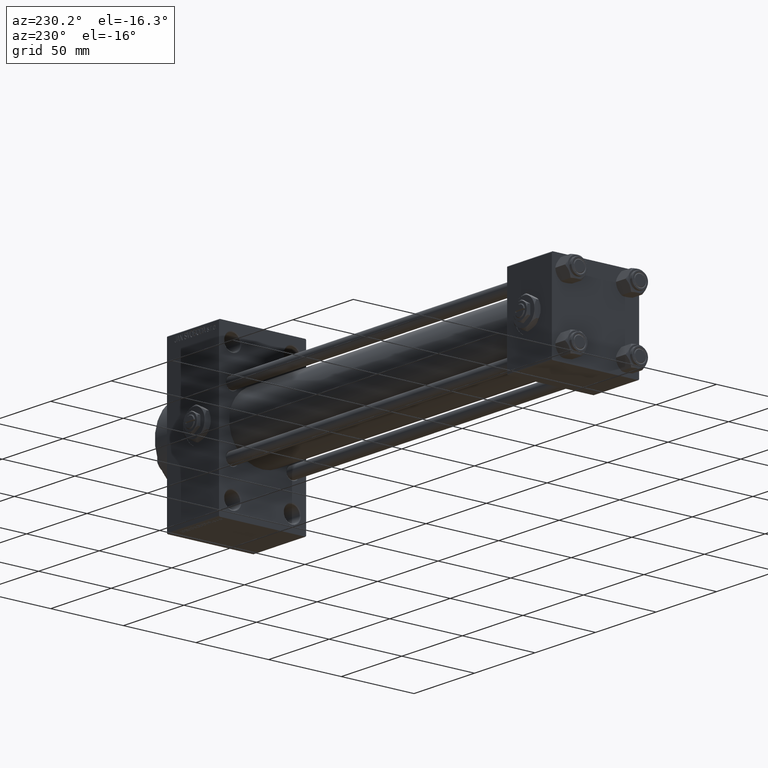
[diagram: clean part render]
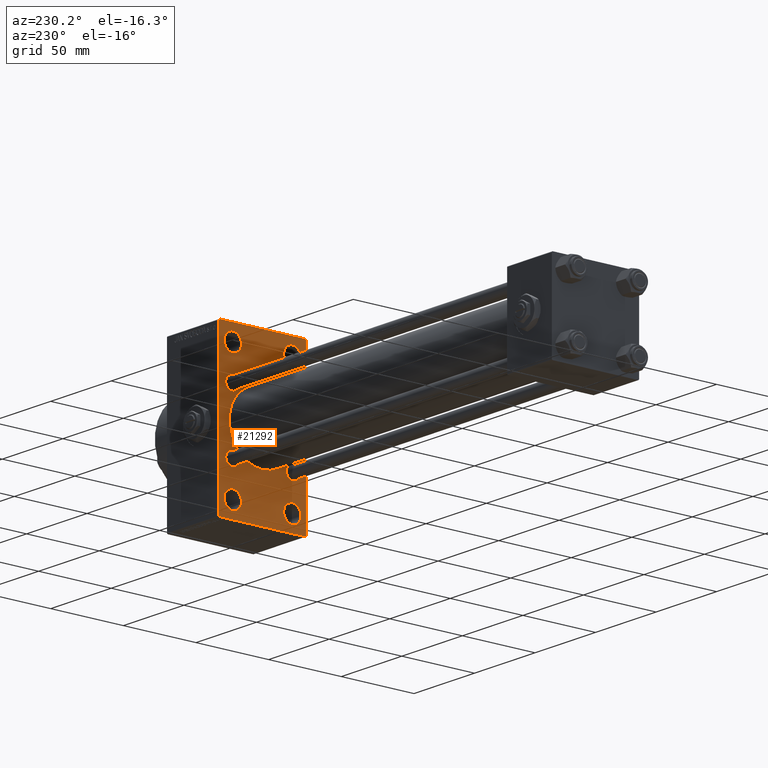
[diagram: same view with one face highlighted and labeled with its STEP entity id]
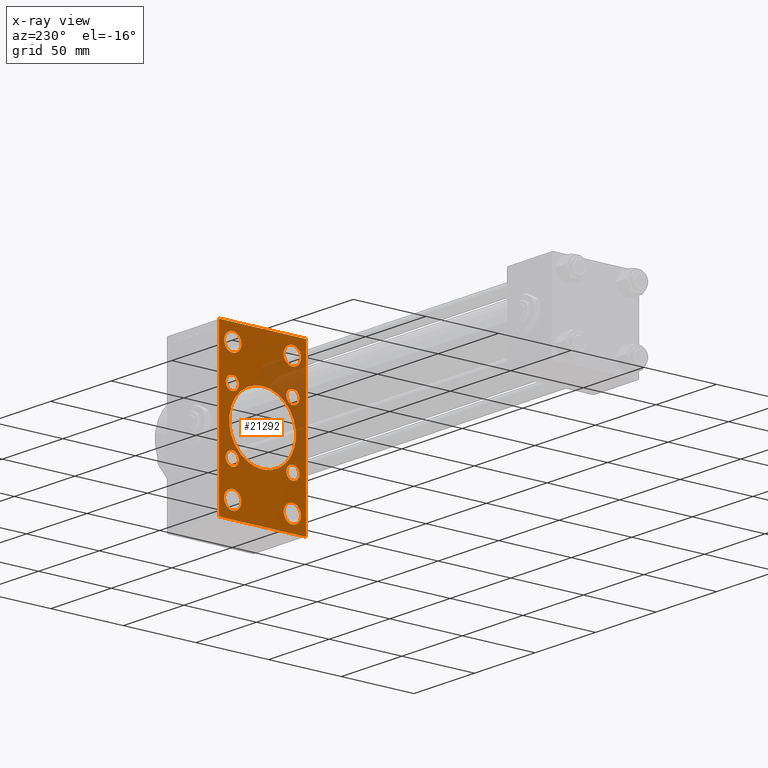
[diagram: x-ray of the same camera — body ghosted, the highlighted face saturated]
A machine part, auxiliary view. The second image highlights one B-rep face of the part: STEP entity #21292.
The next image is the same camera in x-ray: the body ghosted, the highlighted face saturated — about 18% of this face is hidden behind the body in this view.
In plain terms, the highlighted planar face has unit normal (-1, 0, 0).
Its self-contained STEP definition (entity closure, byte-faithful):
#101 = CARTESIAN_POINT ( 'NONE',  ( 274.9999999999999432, 42.00000000000081002, -41.99999999999847233 ) ) ;
#263 = EDGE_CURVE ( 'NONE', #37332, #35288, #37143, .T. ) ;
#914 = ORIENTED_EDGE ( 'NONE', *, *, #8785, .T. ) ;
#978 = CARTESIAN_POINT ( 'NONE',  ( 274.9999999999999432, 0.000000000000000000, 0.000000000000000000 ) ) ;
#1447 = CARTESIAN_POINT ( 'NONE',  ( 274.9999999999999432, 20.84999999999999787, 20.85000000000000142 ) ) ;
#1534 = VERTEX_POINT ( 'NONE', #9001 ) ;
#2008 = VERTEX_POINT ( 'NONE', #21192 ) ;
#2254 = VECTOR ( 'NONE', #18330, 1000.000000000000000 ) ;
#2692 = EDGE_CURVE ( 'NONE', #33189, #16506, #24464, .T. ) ;
#2835 = AXIS2_PLACEMENT_3D ( 'NONE', #26892, #30891, #41911 ) ;
#2849 = DIRECTION ( 'NONE',  ( 1.000000000000000000, -0.000000000000000000, 0.000000000000000000 ) ) ;
#2924 = CARTESIAN_POINT ( 'NONE',  ( 274.9999999999999432, 20.84999999999999787, 20.85000000000000142 ) ) ;
#3090 = CARTESIAN_POINT ( 'NONE',  ( 274.9999999999999432, 20.84999999999999787, -20.85000000000000142 ) ) ;
#3765 = CIRCLE ( 'NONE', #32573, 4.500000000000007105 ) ;
#3788 = EDGE_CURVE ( 'NONE', #12443, #31094, #41171, .T. ) ;
#3977 = VECTOR ( 'NONE', #19443, 1000.000000000000000 ) ;
#3987 = FACE_BOUND ( 'NONE', #16099, .T. ) ;
#4024 = DIRECTION ( 'NONE',  ( 1.000000000000000000, -0.000000000000000000, 0.000000000000000000 ) ) ;
#4090 = CARTESIAN_POINT ( 'NONE',  ( 274.9999999999999432, 29.99999999999999645, -54.49999999999999289 ) ) ;
#4164 = LINE ( 'NONE', #19951, #3977 ) ;
#4467 = FACE_BOUND ( 'NONE', #15146, .T. ) ;
#4901 = EDGE_CURVE ( 'NONE', #46696, #48125, #39597, .T. ) ;
#5050 = CARTESIAN_POINT ( 'NONE',  ( 274.9999999999999432, -20.50000000000000000, 43.50000000000000000 ) ) ;
#5792 = VERTEX_POINT ( 'NONE', #24371 ) ;
#6061 = CARTESIAN_POINT ( 'NONE',  ( 274.9999999999999432, -29.50000000000002842, -54.50000000000000000 ) ) ;
#6183 = EDGE_CURVE ( 'NONE', #6535, #39296, #27646, .T. ) ;
#6430 = DIRECTION ( 'NONE',  ( 1.000000000000000000, -0.000000000000000000, 0.000000000000000000 ) ) ;
#6535 = VERTEX_POINT ( 'NONE', #46885 ) ;
#6922 = DIRECTION ( 'NONE',  ( 1.000000000000000000, -0.000000000000000000, 0.000000000000000000 ) ) ;
#7141 = AXIS2_PLACEMENT_3D ( 'NONE', #12508, #43043, #35532 ) ;
#7200 = VECTOR ( 'NONE', #21836, 1000.000000000000000 ) ;
#8085 = CARTESIAN_POINT ( 'NONE',  ( 274.9999999999999432, -20.84999999999999076, 25.35000000000001208 ) ) ;
#8230 = PLANE ( 'NONE',  #20949 ) ;
#8481 = DIRECTION ( 'NONE',  ( -1.000000000000000000, 0.000000000000000000, -0.000000000000000000 ) ) ;
#8785 = EDGE_CURVE ( 'NONE', #41372, #16413, #44723, .T. ) ;
#8812 = EDGE_CURVE ( 'NONE', #48478, #13661, #41324, .T. ) ;
#8911 = CARTESIAN_POINT ( 'NONE',  ( 274.9999999999999432, -29.49999999999994671, 54.50000000000000000 ) ) ;
#8934 = CARTESIAN_POINT ( 'NONE',  ( 274.9999999999999432, -20.50000000000000000, -49.50000000000005684 ) ) ;
#9001 = CARTESIAN_POINT ( 'NONE',  ( 274.9999999999999432, 29.49999999999999645, -54.49999999999999289 ) ) ;
#9140 = EDGE_CURVE ( 'NONE', #39296, #6535, #3765, .T. ) ;
#9932 = ORIENTED_EDGE ( 'NONE', *, *, #18369, .F. ) ;
#10114 = CARTESIAN_POINT ( 'NONE',  ( 274.9999999999999432, -30.00000000000000000, 53.99999999999994316 ) ) ;
#10389 = CIRCLE ( 'NONE', #47181, 4.500000000000007105 ) ;
#10447 = CARTESIAN_POINT ( 'NONE',  ( 274.9999999999999432, -20.50000000000000000, 49.50000000000005684 ) ) ;
#10676 = CARTESIAN_POINT ( 'NONE',  ( 274.9999999999999432, 20.84999999999999787, -25.35000000000000853 ) ) ;
#10974 = EDGE_CURVE ( 'NONE', #2008, #1534, #41669, .T. ) ;
#11172 = ORIENTED_EDGE ( 'NONE', *, *, #4901, .T. ) ;
#11293 = CARTESIAN_POINT ( 'NONE',  ( 274.9999999999999432, 20.50000000000000000, -37.49999999999993605 ) ) ;
#11440 = ORIENTED_EDGE ( 'NONE', *, *, #2692, .T. ) ;
#11537 = CARTESIAN_POINT ( 'NONE',  ( 274.9999999999999432, 20.50000000000000000, 43.50000000000000000 ) ) ;
#11570 = CARTESIAN_POINT ( 'NONE',  ( 274.9999999999999432, -20.84999999999999076, -16.34999999999999787 ) ) ;
#11618 = AXIS2_PLACEMENT_3D ( 'NONE', #16091, #35366, #27107 ) ;
#11993 = DIRECTION ( 'NONE',  ( 1.000000000000000000, -0.000000000000000000, 0.000000000000000000 ) ) ;
#11996 = VERTEX_POINT ( 'NONE', #32924 ) ;
#12040 = CIRCLE ( 'NONE', #20046, 6.000000000000060396 ) ;
#12250 = FACE_BOUND ( 'NONE', #30135, .T. ) ;
#12324 = CARTESIAN_POINT ( 'NONE',  ( 274.9999999999999432, 20.50000000000000000, 49.50000000000005684 ) ) ;
#12443 = VERTEX_POINT ( 'NONE', #11570 ) ;
#12508 = CARTESIAN_POINT ( 'NONE',  ( 274.9999999999999432, 20.50000000000000000, -43.50000000000000000 ) ) ;
#12756 = VERTEX_POINT ( 'NONE', #48827 ) ;
#13266 = EDGE_CURVE ( 'NONE', #45092, #28621, #35237, .T. ) ;
#13661 = VERTEX_POINT ( 'NONE', #11293 ) ;
#13932 = DIRECTION ( 'NONE',  ( -0.000000000000000000, 0.7071067811865451302, 0.7071067811865500152 ) ) ;
#14053 = VERTEX_POINT ( 'NONE', #8934 ) ;
#14583 = DIRECTION ( 'NONE',  ( 0.000000000000000000, 0.000000000000000000, 1.000000000000000000 ) ) ;
#14736 = DIRECTION ( 'NONE',  ( 0.000000000000000000, 0.000000000000000000, 1.000000000000000000 ) ) ;
#14882 = CARTESIAN_POINT ( 'NONE',  ( 274.9999999999999432, 20.50000000000000000, 37.49999999999993605 ) ) ;
#15146 = EDGE_LOOP ( 'NONE', ( #25059, #33566 ) ) ;
#15324 = EDGE_CURVE ( 'NONE', #12756, #44801, #10389, .T. ) ;
#15386 = ORIENTED_EDGE ( 'NONE', *, *, #10974, .T. ) ;
#15574 = CARTESIAN_POINT ( 'NONE',  ( 274.9999999999999432, -20.84999999999999076, -20.85000000000000497 ) ) ;
#15661 = AXIS2_PLACEMENT_3D ( 'NONE', #38024, #22271, #30517 ) ;
#16085 = DIRECTION ( 'NONE',  ( 0.000000000000000000, 0.000000000000000000, 1.000000000000000000 ) ) ;
#16091 = CARTESIAN_POINT ( 'NONE',  ( 274.9999999999999432, -2.602085213965210642E-15, 0.000000000000000000 ) ) ;
#16099 = EDGE_LOOP ( 'NONE', ( #41781, #20196 ) ) ;
#16297 = AXIS2_PLACEMENT_3D ( 'NONE', #26999, #45289, #27499 ) ;
#16395 = AXIS2_PLACEMENT_3D ( 'NONE', #5050, #17562, #32836 ) ;
#16413 = VERTEX_POINT ( 'NONE', #8911 ) ;
#16506 = VERTEX_POINT ( 'NONE', #14882 ) ;
#16884 = EDGE_CURVE ( 'NONE', #14053, #11996, #12040, .T. ) ;
#16946 = CARTESIAN_POINT ( 'NONE',  ( 274.9999999999999432, -42.00000000000007105, 41.99999999999977973 ) ) ;
#17562 = DIRECTION ( 'NONE',  ( 1.000000000000000000, -0.000000000000000000, 0.000000000000000000 ) ) ;
#17688 = DIRECTION ( 'NONE',  ( 1.000000000000000000, -0.000000000000000000, 0.000000000000000000 ) ) ;
#18330 = DIRECTION ( 'NONE',  ( 0.000000000000000000, 0.000000000000000000, -1.000000000000000000 ) ) ;
#18369 = EDGE_CURVE ( 'NONE', #43532, #16413, #48120, .T. ) ;
#18849 = ORIENTED_EDGE ( 'NONE', *, *, #27080, .T. ) ;
#19005 = EDGE_CURVE ( 'NONE', #43532, #46579, #4164, .T. ) ;
#19025 = FACE_BOUND ( 'NONE', #49542, .T. ) ;
#19443 = DIRECTION ( 'NONE',  ( 0.000000000000000000, 0.7071067811865279218, -0.7071067811865672237 ) ) ;
#19456 = DIRECTION ( 'NONE',  ( 0.000000000000000000, -0.7071067811865157093, 0.7071067811865794361 ) ) ;
#19579 = ORIENTED_EDGE ( 'NONE', *, *, #45356, .T. ) ;
#19734 = DIRECTION ( 'NONE',  ( 1.000000000000000000, -0.000000000000000000, 0.000000000000000000 ) ) ;
#19756 = AXIS2_PLACEMENT_3D ( 'NONE', #40715, #6430, #21704 ) ;
#19760 = FACE_BOUND ( 'NONE', #34453, .T. ) ;
#19951 = CARTESIAN_POINT ( 'NONE',  ( 274.9999999999999432, 42.00000000000081002, 41.99999999999847944 ) ) ;
#20046 = AXIS2_PLACEMENT_3D ( 'NONE', #33616, #48880, #14583 ) ;
#20052 = DIRECTION ( 'NONE',  ( 0.000000000000000000, 0.000000000000000000, 1.000000000000000000 ) ) ;
#20107 = EDGE_LOOP ( 'NONE', ( #19579, #26460 ) ) ;
#20196 = ORIENTED_EDGE ( 'NONE', *, *, #16884, .T. ) ;
#20403 = CIRCLE ( 'NONE', #16395, 6.000000000000060396 ) ;
#20506 = AXIS2_PLACEMENT_3D ( 'NONE', #28011, #36247, #25216 ) ;
#20949 = AXIS2_PLACEMENT_3D ( 'NONE', #978, #8481, #34766 ) ;
#21192 = CARTESIAN_POINT ( 'NONE',  ( 274.9999999999999432, 29.99999999999999645, -53.99999999999996447 ) ) ;
#21292 = ADVANCED_FACE ( 'NONE', ( #26765, #3987, #19025, #19760, #31277, #23264, #4467, #12250, #42779, #23755 ), #8230, .T. ) ;
#21329 = CIRCLE ( 'NONE', #49323, 6.000000000000060396 ) ;
#21599 = CARTESIAN_POINT ( 'NONE',  ( 274.9999999999999432, 29.99999999999999645, 54.49999999999999289 ) ) ;
#21704 = DIRECTION ( 'NONE',  ( 0.000000000000000000, 0.000000000000000000, 1.000000000000000000 ) ) ;
#21836 = DIRECTION ( 'NONE',  ( 0.000000000000000000, -1.000000000000000000, 1.156482317317871478E-16 ) ) ;
#22271 = DIRECTION ( 'NONE',  ( 1.000000000000000000, -0.000000000000000000, 0.000000000000000000 ) ) ;
#22293 = ORIENTED_EDGE ( 'NONE', *, *, #8812, .T. ) ;
#22463 = DIRECTION ( 'NONE',  ( 0.000000000000000000, 0.000000000000000000, 1.000000000000000000 ) ) ;
#23264 = FACE_BOUND ( 'NONE', #36864, .T. ) ;
#23571 = ORIENTED_EDGE ( 'NONE', *, *, #47221, .F. ) ;
#23576 = ORIENTED_EDGE ( 'NONE', *, *, #6183, .T. ) ;
#23755 = FACE_OUTER_BOUND ( 'NONE', #41749, .T. ) ;
#23929 = VECTOR ( 'NONE', #19456, 999.9999999999998863 ) ;
#24150 = ORIENTED_EDGE ( 'NONE', *, *, #28004, .T. ) ;
#24239 = CARTESIAN_POINT ( 'NONE',  ( 274.9999999999999432, -30.00000000000000000, -53.99999999999998579 ) ) ;
#24371 = CARTESIAN_POINT ( 'NONE',  ( 274.9999999999999432, -2.602085213965210642E-15, 23.00000000000000000 ) ) ;
#24464 = CIRCLE ( 'NONE', #37259, 6.000000000000060396 ) ;
#24479 = CARTESIAN_POINT ( 'NONE',  ( 274.9999999999999432, 20.84999999999999787, 16.34999999999999432 ) ) ;
#25059 = ORIENTED_EDGE ( 'NONE', *, *, #263, .T. ) ;
#25115 = EDGE_CURVE ( 'NONE', #35288, #37332, #31494, .T. ) ;
#25149 = AXIS2_PLACEMENT_3D ( 'NONE', #15574, #31354, #16085 ) ;
#25216 = DIRECTION ( 'NONE',  ( 0.000000000000000000, 0.000000000000000000, 1.000000000000000000 ) ) ;
#25239 = EDGE_CURVE ( 'NONE', #44801, #12756, #46667, .T. ) ;
#25897 = EDGE_CURVE ( 'NONE', #1534, #45092, #38633, .T. ) ;
#25941 = CARTESIAN_POINT ( 'NONE',  ( 274.9999999999999432, 29.49999999999999645, 54.49999999999999289 ) ) ;
#25968 = ORIENTED_EDGE ( 'NONE', *, *, #40749, .T. ) ;
#26098 = ORIENTED_EDGE ( 'NONE', *, *, #25239, .T. ) ;
#26406 = DIRECTION ( 'NONE',  ( -0.000000000000000000, -0.7071067811865279218, -0.7071067811865672237 ) ) ;
#26460 = ORIENTED_EDGE ( 'NONE', *, *, #27873, .T. ) ;
#26616 = DIRECTION ( 'NONE',  ( 0.000000000000000000, 0.000000000000000000, 1.000000000000000000 ) ) ;
#26765 = FACE_BOUND ( 'NONE', #45768, .T. ) ;
#26892 = CARTESIAN_POINT ( 'NONE',  ( 274.9999999999999432, -20.50000000000000000, 43.50000000000000000 ) ) ;
#26999 = CARTESIAN_POINT ( 'NONE',  ( 274.9999999999999432, 20.84999999999999787, -20.85000000000000142 ) ) ;
#27080 = EDGE_CURVE ( 'NONE', #31094, #12443, #34769, .T. ) ;
#27107 = DIRECTION ( 'NONE',  ( 0.000000000000000000, 0.000000000000000000, -1.000000000000000000 ) ) ;
#27323 = ORIENTED_EDGE ( 'NONE', *, *, #38148, .T. ) ;
#27499 = DIRECTION ( 'NONE',  ( 0.000000000000000000, 0.000000000000000000, 1.000000000000000000 ) ) ;
#27646 = CIRCLE ( 'NONE', #15661, 4.500000000000007105 ) ;
#27714 = CARTESIAN_POINT ( 'NONE',  ( 274.9999999999999432, -42.00000000000134293, -41.99999999999755573 ) ) ;
#27747 = CARTESIAN_POINT ( 'NONE',  ( 274.9999999999999432, 29.99999999999999645, 53.99999999999996447 ) ) ;
#27849 = AXIS2_PLACEMENT_3D ( 'NONE', #30503, #19734, #14736 ) ;
#27873 = EDGE_CURVE ( 'NONE', #46246, #5792, #45986, .T. ) ;
#28004 = EDGE_CURVE ( 'NONE', #48125, #46696, #20403, .T. ) ;
#28011 = CARTESIAN_POINT ( 'NONE',  ( 274.9999999999999432, -20.84999999999999076, -20.85000000000000497 ) ) ;
#28235 = DIRECTION ( 'NONE',  ( 0.000000000000000000, 0.000000000000000000, 1.000000000000000000 ) ) ;
#28621 = VERTEX_POINT ( 'NONE', #24239 ) ;
#29718 = ORIENTED_EDGE ( 'NONE', *, *, #25897, .T. ) ;
#29811 = ORIENTED_EDGE ( 'NONE', *, *, #15324, .T. ) ;
#30086 = LINE ( 'NONE', #42271, #2254 ) ;
#30135 = EDGE_LOOP ( 'NONE', ( #31502, #18849 ) ) ;
#30230 = ORIENTED_EDGE ( 'NONE', *, *, #39091, .T. ) ;
#30503 = CARTESIAN_POINT ( 'NONE',  ( 274.9999999999999432, 20.50000000000000000, 43.50000000000000000 ) ) ;
#30517 = DIRECTION ( 'NONE',  ( 0.000000000000000000, 0.000000000000000000, 1.000000000000000000 ) ) ;
#30891 = DIRECTION ( 'NONE',  ( 1.000000000000000000, -0.000000000000000000, 0.000000000000000000 ) ) ;
#31094 = VERTEX_POINT ( 'NONE', #45867 ) ;
#31129 = DIRECTION ( 'NONE',  ( 0.000000000000000000, -1.000000000000000000, -1.156482317317871478E-16 ) ) ;
#31174 = DIRECTION ( 'NONE',  ( 0.000000000000000000, 0.000000000000000000, -1.000000000000000000 ) ) ;
#31277 = FACE_BOUND ( 'NONE', #44710, .T. ) ;
#31354 = DIRECTION ( 'NONE',  ( 1.000000000000000000, -0.000000000000000000, 0.000000000000000000 ) ) ;
#31494 = CIRCLE ( 'NONE', #16297, 4.500000000000007105 ) ;
#31502 = ORIENTED_EDGE ( 'NONE', *, *, #3788, .T. ) ;
#31719 = VECTOR ( 'NONE', #13932, 1000.000000000000114 ) ;
#32460 = CARTESIAN_POINT ( 'NONE',  ( 274.9999999999999432, -20.50000000000000000, -43.50000000000000000 ) ) ;
#32573 = AXIS2_PLACEMENT_3D ( 'NONE', #42572, #2849, #41657 ) ;
#32836 = DIRECTION ( 'NONE',  ( 0.000000000000000000, 0.000000000000000000, 1.000000000000000000 ) ) ;
#32924 = CARTESIAN_POINT ( 'NONE',  ( 274.9999999999999432, -20.50000000000000000, -37.49999999999993605 ) ) ;
#33189 = VERTEX_POINT ( 'NONE', #12324 ) ;
#33255 = ORIENTED_EDGE ( 'NONE', *, *, #13266, .T. ) ;
#33566 = ORIENTED_EDGE ( 'NONE', *, *, #25115, .T. ) ;
#33616 = CARTESIAN_POINT ( 'NONE',  ( 274.9999999999999432, -20.50000000000000000, -43.50000000000000000 ) ) ;
#34453 = EDGE_LOOP ( 'NONE', ( #11440, #30230 ) ) ;
#34752 = AXIS2_PLACEMENT_3D ( 'NONE', #3090, #37877, #26616 ) ;
#34766 = DIRECTION ( 'NONE',  ( -0.000000000000000000, 0.000000000000000000, 1.000000000000000000 ) ) ;
#34769 = CIRCLE ( 'NONE', #25149, 4.500000000000007105 ) ;
#34809 = CARTESIAN_POINT ( 'NONE',  ( 274.9999999999999432, 2.146024240737016609E-16, -23.00000000000000000 ) ) ;
#35085 = CARTESIAN_POINT ( 'NONE',  ( 274.9999999999999432, -2.602085213965210642E-15, 0.000000000000000000 ) ) ;
#35142 = EDGE_CURVE ( 'NONE', #11996, #14053, #21329, .T. ) ;
#35187 = CARTESIAN_POINT ( 'NONE',  ( 274.9999999999999432, 29.99999999999999645, 54.49999999999999289 ) ) ;
#35237 = LINE ( 'NONE', #27714, #23929 ) ;
#35288 = VERTEX_POINT ( 'NONE', #10676 ) ;
#35366 = DIRECTION ( 'NONE',  ( 1.000000000000000000, 0.000000000000000000, 0.000000000000000000 ) ) ;
#35532 = DIRECTION ( 'NONE',  ( 0.000000000000000000, 0.000000000000000000, 1.000000000000000000 ) ) ;
#35659 = CARTESIAN_POINT ( 'NONE',  ( 274.9999999999999432, 20.84999999999999787, -16.34999999999999432 ) ) ;
#36247 = DIRECTION ( 'NONE',  ( 1.000000000000000000, -0.000000000000000000, 0.000000000000000000 ) ) ;
#36864 = EDGE_LOOP ( 'NONE', ( #29811, #26098 ) ) ;
#37143 = CIRCLE ( 'NONE', #34752, 4.500000000000007105 ) ;
#37259 = AXIS2_PLACEMENT_3D ( 'NONE', #11537, #4024, #20052 ) ;
#37332 = VERTEX_POINT ( 'NONE', #35659 ) ;
#37554 = AXIS2_PLACEMENT_3D ( 'NONE', #35085, #46088, #38581 ) ;
#37877 = DIRECTION ( 'NONE',  ( 1.000000000000000000, -0.000000000000000000, 0.000000000000000000 ) ) ;
#38024 = CARTESIAN_POINT ( 'NONE',  ( 274.9999999999999432, -20.84999999999999076, 20.85000000000000497 ) ) ;
#38148 = EDGE_CURVE ( 'NONE', #46579, #2008, #38177, .T. ) ;
#38177 = LINE ( 'NONE', #35187, #45381 ) ;
#38581 = DIRECTION ( 'NONE',  ( 0.000000000000000000, 0.000000000000000000, -1.000000000000000000 ) ) ;
#38633 = LINE ( 'NONE', #4090, #44310 ) ;
#39091 = EDGE_CURVE ( 'NONE', #16506, #33189, #39827, .T. ) ;
#39296 = VERTEX_POINT ( 'NONE', #8085 ) ;
#39597 = CIRCLE ( 'NONE', #2835, 6.000000000000060396 ) ;
#39827 = CIRCLE ( 'NONE', #27849, 6.000000000000060396 ) ;
#40715 = CARTESIAN_POINT ( 'NONE',  ( 274.9999999999999432, 20.50000000000000000, -43.50000000000000000 ) ) ;
#40749 = EDGE_CURVE ( 'NONE', #13661, #48478, #43101, .T. ) ;
#41171 = CIRCLE ( 'NONE', #20506, 4.500000000000007105 ) ;
#41324 = CIRCLE ( 'NONE', #19756, 6.000000000000060396 ) ;
#41352 = CARTESIAN_POINT ( 'NONE',  ( 274.9999999999999432, -20.50000000000000000, 37.49999999999993605 ) ) ;
#41372 = VERTEX_POINT ( 'NONE', #10114 ) ;
#41657 = DIRECTION ( 'NONE',  ( 0.000000000000000000, 0.000000000000000000, 1.000000000000000000 ) ) ;
#41669 = LINE ( 'NONE', #101, #46181 ) ;
#41749 = EDGE_LOOP ( 'NONE', ( #29718, #33255, #23571, #914, #9932, #42251, #27323, #15386 ) ) ;
#41781 = ORIENTED_EDGE ( 'NONE', *, *, #35142, .T. ) ;
#41911 = DIRECTION ( 'NONE',  ( 0.000000000000000000, 0.000000000000000000, 1.000000000000000000 ) ) ;
#41930 = ORIENTED_EDGE ( 'NONE', *, *, #9140, .T. ) ;
#42251 = ORIENTED_EDGE ( 'NONE', *, *, #19005, .T. ) ;
#42271 = CARTESIAN_POINT ( 'NONE',  ( 274.9999999999999432, -30.00000000000000000, 54.50000000000000000 ) ) ;
#42572 = CARTESIAN_POINT ( 'NONE',  ( 274.9999999999999432, -20.84999999999999076, 20.85000000000000497 ) ) ;
#42779 = FACE_BOUND ( 'NONE', #20107, .T. ) ;
#43043 = DIRECTION ( 'NONE',  ( 1.000000000000000000, -0.000000000000000000, 0.000000000000000000 ) ) ;
#43101 = CIRCLE ( 'NONE', #7141, 6.000000000000060396 ) ;
#43488 = AXIS2_PLACEMENT_3D ( 'NONE', #1447, #11993, #28235 ) ;
#43532 = VERTEX_POINT ( 'NONE', #25941 ) ;
#43730 = DIRECTION ( 'NONE',  ( 0.000000000000000000, 0.000000000000000000, 1.000000000000000000 ) ) ;
#44310 = VECTOR ( 'NONE', #31129, 1000.000000000000000 ) ;
#44710 = EDGE_LOOP ( 'NONE', ( #41930, #23576 ) ) ;
#44723 = LINE ( 'NONE', #16946, #31719 ) ;
#44801 = VERTEX_POINT ( 'NONE', #24479 ) ;
#45092 = VERTEX_POINT ( 'NONE', #6061 ) ;
#45289 = DIRECTION ( 'NONE',  ( 1.000000000000000000, -0.000000000000000000, 0.000000000000000000 ) ) ;
#45356 = EDGE_CURVE ( 'NONE', #5792, #46246, #46342, .T. ) ;
#45381 = VECTOR ( 'NONE', #31174, 1000.000000000000000 ) ;
#45768 = EDGE_LOOP ( 'NONE', ( #11172, #24150 ) ) ;
#45867 = CARTESIAN_POINT ( 'NONE',  ( 274.9999999999999432, -20.84999999999999076, -25.35000000000001208 ) ) ;
#45986 = CIRCLE ( 'NONE', #11618, 23.00000000000000000 ) ;
#46088 = DIRECTION ( 'NONE',  ( 1.000000000000000000, 0.000000000000000000, 0.000000000000000000 ) ) ;
#46181 = VECTOR ( 'NONE', #26406, 1000.000000000000000 ) ;
#46246 = VERTEX_POINT ( 'NONE', #34809 ) ;
#46342 = CIRCLE ( 'NONE', #37554, 23.00000000000000000 ) ;
#46579 = VERTEX_POINT ( 'NONE', #27747 ) ;
#46584 = CARTESIAN_POINT ( 'NONE',  ( 274.9999999999999432, 20.50000000000000000, -49.50000000000005684 ) ) ;
#46667 = CIRCLE ( 'NONE', #43488, 4.500000000000007105 ) ;
#46696 = VERTEX_POINT ( 'NONE', #10447 ) ;
#46885 = CARTESIAN_POINT ( 'NONE',  ( 274.9999999999999432, -20.84999999999999076, 16.34999999999999787 ) ) ;
#47181 = AXIS2_PLACEMENT_3D ( 'NONE', #2924, #6922, #22463 ) ;
#47221 = EDGE_CURVE ( 'NONE', #41372, #28621, #30086, .T. ) ;
#48120 = LINE ( 'NONE', #21599, #7200 ) ;
#48125 = VERTEX_POINT ( 'NONE', #41352 ) ;
#48478 = VERTEX_POINT ( 'NONE', #46584 ) ;
#48827 = CARTESIAN_POINT ( 'NONE',  ( 274.9999999999999432, 20.84999999999999787, 25.35000000000000853 ) ) ;
#48880 = DIRECTION ( 'NONE',  ( 1.000000000000000000, -0.000000000000000000, 0.000000000000000000 ) ) ;
#49323 = AXIS2_PLACEMENT_3D ( 'NONE', #32460, #17688, #43730 ) ;
#49542 = EDGE_LOOP ( 'NONE', ( #25968, #22293 ) ) ;